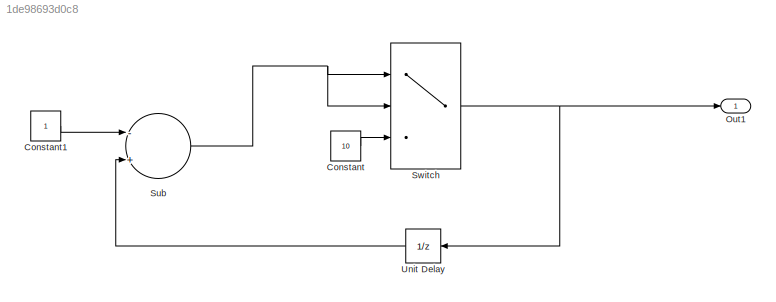
MODEL slx_1de98693d0c8
KIND model
CONFIG AbsTol = auto
CONFIG FixedStep = auto
CONFIG MaxStep = auto
CONFIG MinStep = auto
CONFIG RelTol = 1e-3
CONFIG SampleTimeConstraint = Unconstrained
CONFIG Solver = FixedStepDiscrete
CONFIG SolverMode = Auto
CONFIG SolverName = FixedStepDiscrete
CONFIG StartTime = 0.0
CONFIG StopTime = 10.0
WORKSPACE source: MAT-file member
WORKSPACE handle: class17 (value not decoded)
BLOCK [Constant] Constant
  Value = 10
BLOCK [Constant] Constant1
BLOCK [Outport] Out1
  IconDisplay = Port number
BLOCK [Sum] Sub 
  InputSameDT = off
  Inputs = -+
  OutDataTypeStr = Inherit: Inherit via internal rule
  Ports = [2, 1]
  SaturateOnIntegerOverflow = off
BLOCK [Switch] Switch
  InputSameDT = off
  SaturateOnIntegerOverflow = off
BLOCK [UnitDelay] Unit Delay
  InputProcessing = Elements as channels (sample based)
  SampleTime = -1
LINE Constant1:1 -> Sub :1
LINE Constant:1 -> Switch:3
NET Sub :1 -> Switch:1, Switch:2
NET Switch:1 -> Out1:1, Unit Delay:1
LINE Unit Delay:1 -> Sub :2
note: NET lines group one-source signal fan-out (src -> all destinations, sorted); 1:1 wires keep LINE
